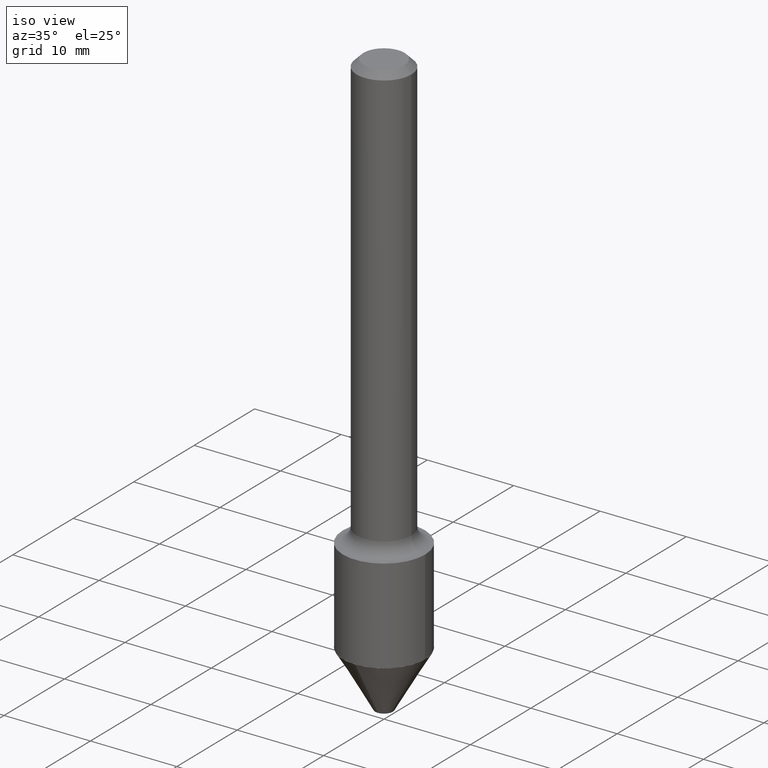
[diagram: clean part render]
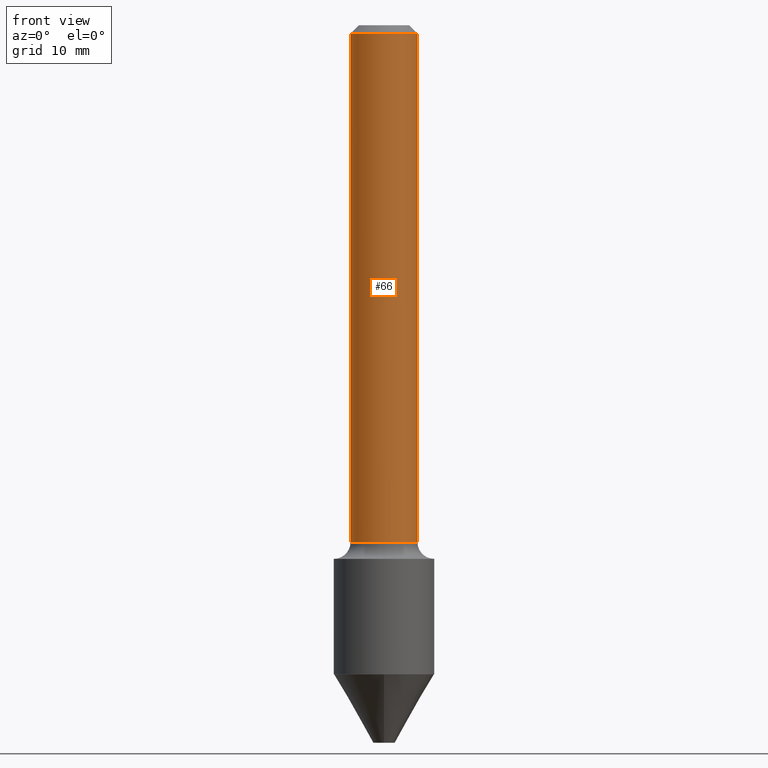
[diagram: tour spotlight — one face highlighted and labeled with its STEP entity id]
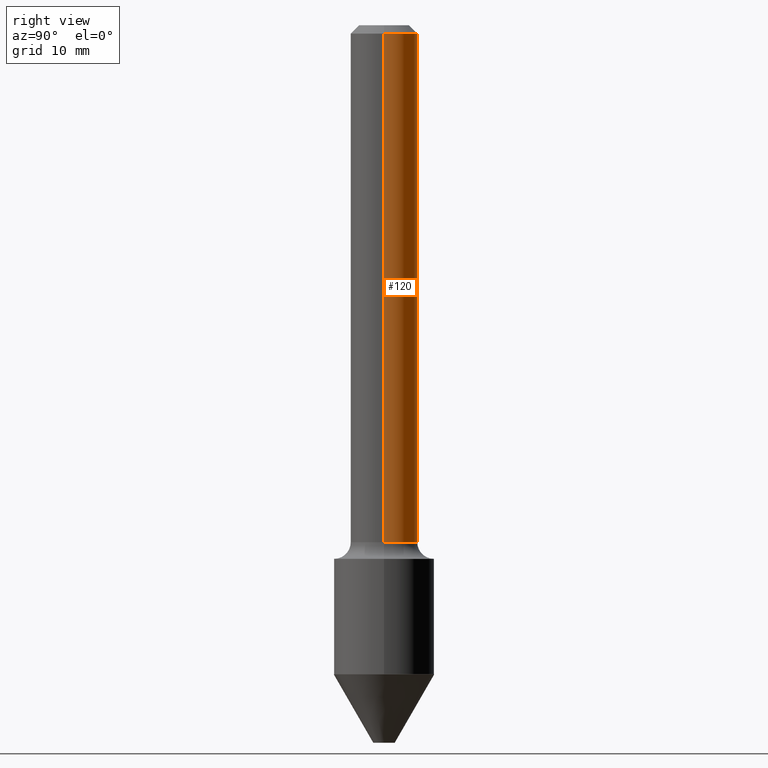
[diagram: tour spotlight — one face highlighted and labeled with its STEP entity id]
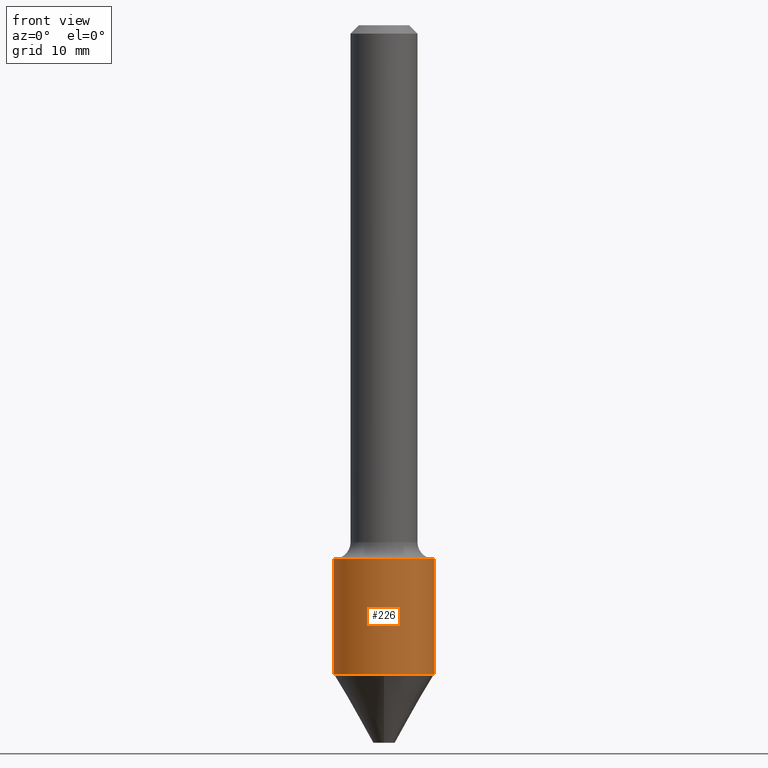
[diagram: tour spotlight — one face highlighted and labeled with its STEP entity id]
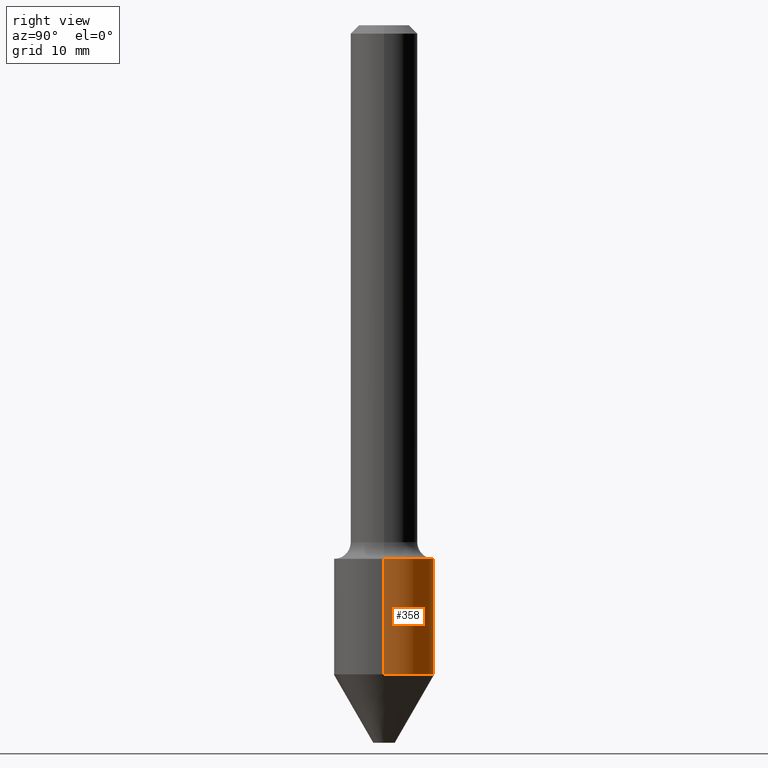
[diagram: tour spotlight — one face highlighted and labeled with its STEP entity id]
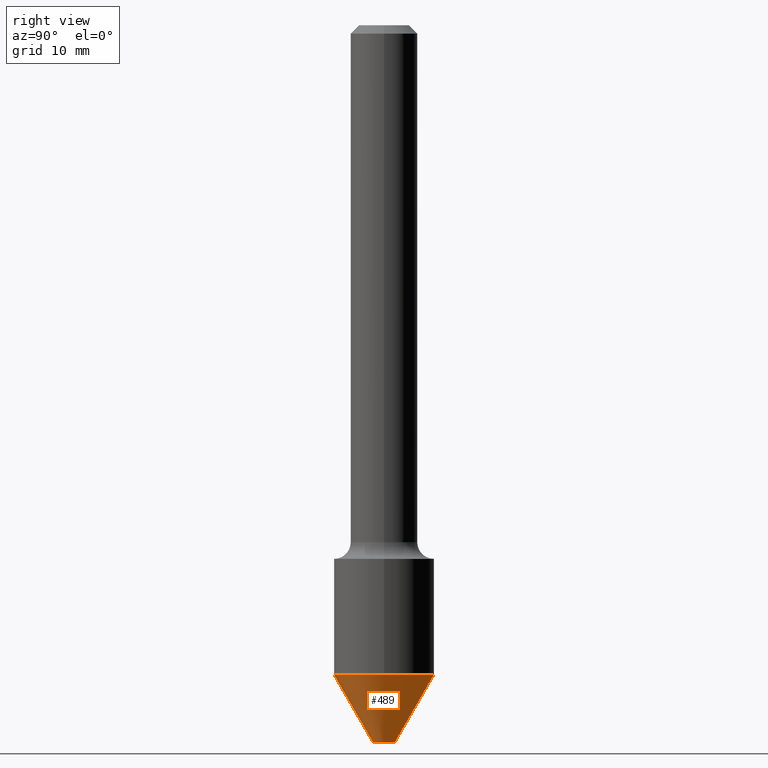
[diagram: tour spotlight — one face highlighted and labeled with its STEP entity id]
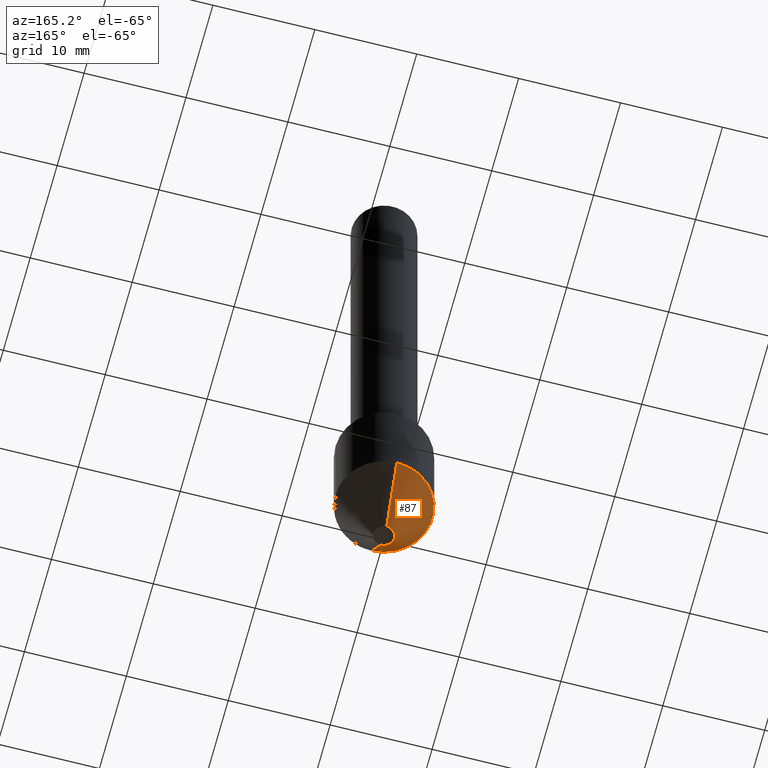
[diagram: tour spotlight — one face highlighted and labeled with its STEP entity id]
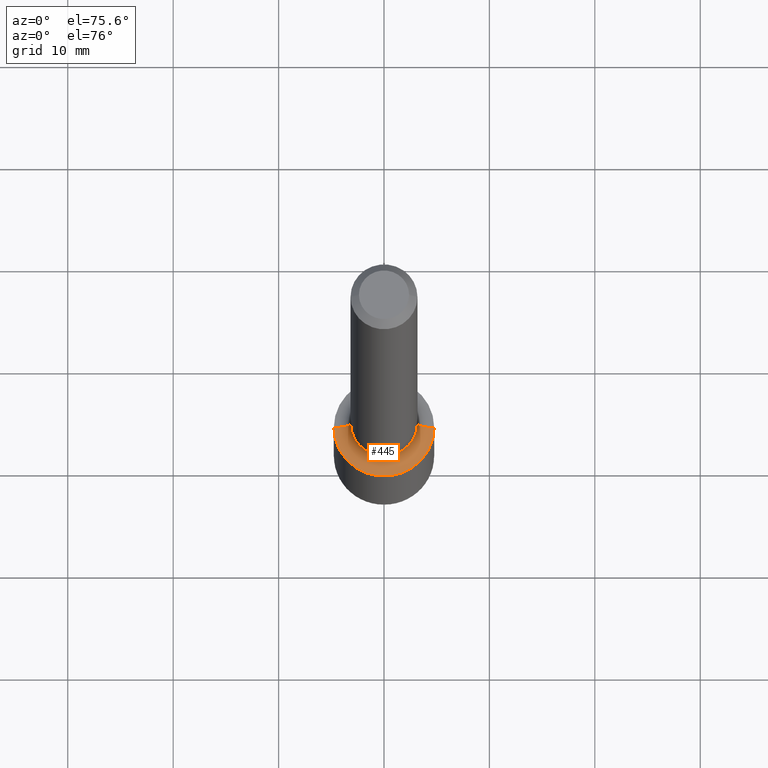
[diagram: tour spotlight — one face highlighted and labeled with its STEP entity id]
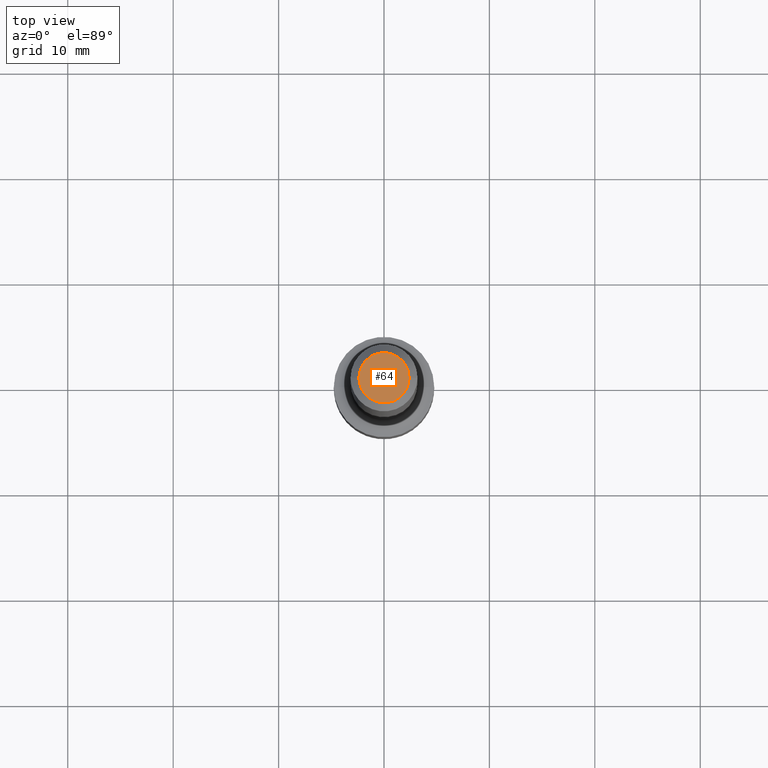
[diagram: tour spotlight — one face highlighted and labeled with its STEP entity id]
A machine part: a face-by-face anatomy tour. The part has 18 B-rep faces; the first image is the clean iso view, then the 8 largest visible faces are spotlighted one at a time (largest first), each with its STEP entity span.

Face 1 — front view, entity #66. In plain terms, the highlighted cylindrical surface (edge-blend (fillet) strip) has radius 3.175 mm, axis along (-0, 0, 1).
Definition (entity closure, byte-faithful):
#13 = ORIENTED_EDGE ( 'NONE', *, *, #314, .F. ) ;
#25 = DIRECTION ( 'NONE',  ( -2.445468806185136597E-29, 3.491481338843145583E-15, 1.000000000000000000 ) ) ;
#33 = VERTEX_POINT ( 'NONE', #187 ) ;
#38 = CARTESIAN_POINT ( 'NONE',  ( -0.1250000000000001110, 8.881784197001260212E-16, -6.148668862818637832E-30 ) ) ;
#47 = DIRECTION ( 'NONE',  ( -2.445468806185136877E-29, 3.491481338843145188E-15, 1.000000000000000000 ) ) ;
#50 = CARTESIAN_POINT ( 'NONE',  ( -0.1250000000000002498, -5.739190491850385263E-15, -1.930500000000000549 ) ) ;
#66 = ADVANCED_FACE ( 'NONE', ( #385 ), #508, .T. ) ;
#75 = CIRCLE ( 'NONE', #430, 0.1250000000000000000 ) ;
#77 = DIRECTION ( 'NONE',  ( 1.000000000000000000, -6.982962677686264344E-15, 0.000000000000000000 ) ) ;
#114 = CARTESIAN_POINT ( 'NONE',  ( 4.720977530340407980E-29, -6.740304724636694281E-15, -1.930500000000000549 ) ) ;
#127 = DIRECTION ( 'NONE',  ( -2.445468806185136877E-29, 3.491481338843145188E-15, 1.000000000000000000 ) ) ;
#146 = DIRECTION ( 'NONE',  ( -2.445468806185136597E-29, 3.491481338843145583E-15, 1.000000000000000000 ) ) ;
#164 = EDGE_CURVE ( 'NONE', #514, #415, #317, .T. ) ;
#174 = EDGE_LOOP ( 'NONE', ( #13, #370, #488, #405 ) ) ;
#187 = CARTESIAN_POINT ( 'NONE',  ( 0.1250000000000000000, -9.664964674933483956E-16, -0.03120000000000020673 ) ) ;
#202 = VECTOR ( 'NONE', #127, 39.37007874015748143 ) ;
#217 = LINE ( 'NONE', #375, #202 ) ;
#230 = DIRECTION ( 'NONE',  ( -2.445468806185136597E-29, 3.491481338843145583E-15, 1.000000000000000000 ) ) ;
#253 = VECTOR ( 'NONE', #47, 39.37007874015748143 ) ;
#260 = CARTESIAN_POINT ( 'NONE',  ( 0.000000000000000000, 0.000000000000000000, 0.000000000000000000 ) ) ;
#296 = VERTEX_POINT ( 'NONE', #438 ) ;
#314 = EDGE_CURVE ( 'NONE', #514, #296, #399, .T. ) ;
#317 = CIRCLE ( 'NONE', #461, 0.1250000000000002498 ) ;
#325 = CARTESIAN_POINT ( 'NONE',  ( 0.1250000000000002498, -7.613175059347479197E-15, -1.930500000000000549 ) ) ;
#339 = CARTESIAN_POINT ( 'NONE',  ( 7.629862675297676574E-31, -1.089342177719068640E-16, -0.03120000000000020673 ) ) ;
#370 = ORIENTED_EDGE ( 'NONE', *, *, #164, .T. ) ;
#375 = CARTESIAN_POINT ( 'NONE',  ( 0.1250000000000001110, -8.728703347107842263E-16, 6.095220969744926047E-30 ) ) ;
#385 = FACE_OUTER_BOUND ( 'NONE', #174, .T. ) ;
#391 = EDGE_CURVE ( 'NONE', #296, #33, #75, .T. ) ;
#395 = AXIS2_PLACEMENT_3D ( 'NONE', #260, #25, #426 ) ;
#399 = LINE ( 'NONE', #38, #253 ) ;
#405 = ORIENTED_EDGE ( 'NONE', *, *, #391, .F. ) ;
#415 = VERTEX_POINT ( 'NONE', #325 ) ;
#426 = DIRECTION ( 'NONE',  ( 1.000000000000000000, -6.982962677686267499E-15, 4.876176775795936353E-29 ) ) ;
#430 = AXIS2_PLACEMENT_3D ( 'NONE', #339, #146, #457 ) ;
#438 = CARTESIAN_POINT ( 'NONE',  ( -0.1250000000000000000, 7.639361169388764871E-16, -0.03120000000000020673 ) ) ;
#457 = DIRECTION ( 'NONE',  ( 1.000000000000000000, -6.982962677686266711E-15, 0.000000000000000000 ) ) ;
#461 = AXIS2_PLACEMENT_3D ( 'NONE', #114, #230, #77 ) ;
#481 = EDGE_CURVE ( 'NONE', #415, #33, #217, .T. ) ;
#488 = ORIENTED_EDGE ( 'NONE', *, *, #481, .T. ) ;
#508 = CYLINDRICAL_SURFACE ( 'NONE', #395, 0.1250000000000001110 ) ;
#514 = VERTEX_POINT ( 'NONE', #50 ) ;

Face 2 — right view, entity #120. In plain terms, the highlighted cylindrical surface (edge-blend (fillet) strip) has radius 3.175 mm, axis along (-0, 0, 1).
Definition (entity closure, byte-faithful):
#23 = CARTESIAN_POINT ( 'NONE',  ( 7.629862675297676574E-31, -1.089342177719068640E-16, -0.03120000000000020673 ) ) ;
#33 = VERTEX_POINT ( 'NONE', #187 ) ;
#38 = CARTESIAN_POINT ( 'NONE',  ( -0.1250000000000001110, 8.881784197001260212E-16, -6.148668862818637832E-30 ) ) ;
#47 = DIRECTION ( 'NONE',  ( -2.445468806185136877E-29, 3.491481338843145188E-15, 1.000000000000000000 ) ) ;
#50 = CARTESIAN_POINT ( 'NONE',  ( -0.1250000000000002498, -5.739190491850385263E-15, -1.930500000000000549 ) ) ;
#97 = ORIENTED_EDGE ( 'NONE', *, *, #353, .F. ) ;
#105 = DIRECTION ( 'NONE',  ( 1.000000000000000000, -6.982962677686266711E-15, 0.000000000000000000 ) ) ;
#120 = ADVANCED_FACE ( 'NONE', ( #503 ), #341, .T. ) ;
#127 = DIRECTION ( 'NONE',  ( -2.445468806185136877E-29, 3.491481338843145188E-15, 1.000000000000000000 ) ) ;
#134 = ORIENTED_EDGE ( 'NONE', *, *, #208, .T. ) ;
#141 = EDGE_LOOP ( 'NONE', ( #134, #450, #97, #282 ) ) ;
#169 = CIRCLE ( 'NONE', #456, 0.1250000000000000000 ) ;
#187 = CARTESIAN_POINT ( 'NONE',  ( 0.1250000000000000000, -9.664964674933483956E-16, -0.03120000000000020673 ) ) ;
#193 = AXIS2_PLACEMENT_3D ( 'NONE', #262, #196, #350 ) ;
#196 = DIRECTION ( 'NONE',  ( -2.445468806185136597E-29, 3.491481338843145583E-15, 1.000000000000000000 ) ) ;
#202 = VECTOR ( 'NONE', #127, 39.37007874015748143 ) ;
#208 = EDGE_CURVE ( 'NONE', #415, #514, #270, .T. ) ;
#217 = LINE ( 'NONE', #375, #202 ) ;
#253 = VECTOR ( 'NONE', #47, 39.37007874015748143 ) ;
#262 = CARTESIAN_POINT ( 'NONE',  ( 4.720977530340407980E-29, -6.740304724636694281E-15, -1.930500000000000549 ) ) ;
#270 = CIRCLE ( 'NONE', #193, 0.1250000000000002498 ) ;
#271 = CARTESIAN_POINT ( 'NONE',  ( 0.000000000000000000, 0.000000000000000000, 0.000000000000000000 ) ) ;
#276 = AXIS2_PLACEMENT_3D ( 'NONE', #271, #467, #302 ) ;
#282 = ORIENTED_EDGE ( 'NONE', *, *, #481, .F. ) ;
#296 = VERTEX_POINT ( 'NONE', #438 ) ;
#302 = DIRECTION ( 'NONE',  ( 1.000000000000000000, -6.982962677686267499E-15, 4.876176775795936353E-29 ) ) ;
#314 = EDGE_CURVE ( 'NONE', #514, #296, #399, .T. ) ;
#325 = CARTESIAN_POINT ( 'NONE',  ( 0.1250000000000002498, -7.613175059347479197E-15, -1.930500000000000549 ) ) ;
#341 = CYLINDRICAL_SURFACE ( 'NONE', #276, 0.1250000000000001110 ) ;
#350 = DIRECTION ( 'NONE',  ( 1.000000000000000000, -6.982962677686264344E-15, 0.000000000000000000 ) ) ;
#353 = EDGE_CURVE ( 'NONE', #33, #296, #169, .T. ) ;
#375 = CARTESIAN_POINT ( 'NONE',  ( 0.1250000000000001110, -8.728703347107842263E-16, 6.095220969744926047E-30 ) ) ;
#399 = LINE ( 'NONE', #38, #253 ) ;
#415 = VERTEX_POINT ( 'NONE', #325 ) ;
#438 = CARTESIAN_POINT ( 'NONE',  ( -0.1250000000000000000, 7.639361169388764871E-16, -0.03120000000000020673 ) ) ;
#450 = ORIENTED_EDGE ( 'NONE', *, *, #314, .T. ) ;
#456 = AXIS2_PLACEMENT_3D ( 'NONE', #23, #497, #105 ) ;
#467 = DIRECTION ( 'NONE',  ( -2.445468806185136597E-29, 3.491481338843145583E-15, 1.000000000000000000 ) ) ;
#481 = EDGE_CURVE ( 'NONE', #415, #33, #217, .T. ) ;
#497 = DIRECTION ( 'NONE',  ( -2.445468806185136597E-29, 3.491481338843145583E-15, 1.000000000000000000 ) ) ;
#503 = FACE_OUTER_BOUND ( 'NONE', #141, .T. ) ;
#514 = VERTEX_POINT ( 'NONE', #50 ) ;

Face 3 — front view, entity #226. In plain terms, the highlighted cylindrical surface (partial cylindrical patch) has radius 4.7625 mm, axis along (-0, 0, 1).
Definition (entity closure, byte-faithful):
#2 = ORIENTED_EDGE ( 'NONE', *, *, #460, .T. ) ;
#21 = EDGE_CURVE ( 'NONE', #61, #251, #110, .T. ) ;
#32 = CYLINDRICAL_SURFACE ( 'NONE', #116, 0.1874999999999999722 ) ;
#55 = ORIENTED_EDGE ( 'NONE', *, *, #184, .T. ) ;
#56 = CARTESIAN_POINT ( 'NONE',  ( 0.1874999999999999722, -1.309305502066174811E-15, 9.142831454617378210E-30 ) ) ;
#61 = VERTEX_POINT ( 'NONE', #446 ) ;
#80 = ORIENTED_EDGE ( 'NONE', *, *, #21, .F. ) ;
#96 = CARTESIAN_POINT ( 'NONE',  ( 4.873819330726977897E-29, -6.958522308314390115E-15, -1.993000000000000327 ) ) ;
#99 = DIRECTION ( 'NONE',  ( -2.445468806185136597E-29, 3.491481338843145583E-15, 1.000000000000000000 ) ) ;
#110 = CIRCLE ( 'NONE', #307, 0.1874999999999999722 ) ;
#116 = AXIS2_PLACEMENT_3D ( 'NONE', #119, #469, #313 ) ;
#119 = CARTESIAN_POINT ( 'NONE',  ( 0.000000000000000000, 0.000000000000000000, 0.000000000000000000 ) ) ;
#137 = DIRECTION ( 'NONE',  ( 1.000000000000000000, -6.982962677686263555E-15, 0.000000000000000000 ) ) ;
#162 = CARTESIAN_POINT ( 'NONE',  ( 5.926648689226014314E-29, -8.461683603559019351E-15, -2.423522505883615175 ) ) ;
#182 = ORIENTED_EDGE ( 'NONE', *, *, #266, .F. ) ;
#184 = EDGE_CURVE ( 'NONE', #292, #321, #304, .T. ) ;
#206 = CARTESIAN_POINT ( 'NONE',  ( -0.1874999999999999722, -6.377835326386517279E-15, -2.423522505883615175 ) ) ;
#226 = ADVANCED_FACE ( 'NONE', ( #393 ), #32, .T. ) ;
#239 = EDGE_LOOP ( 'NONE', ( #182, #55, #2, #80 ) ) ;
#251 = VERTEX_POINT ( 'NONE', #275 ) ;
#263 = VECTOR ( 'NONE', #441, 39.37007874015748143 ) ;
#266 = EDGE_CURVE ( 'NONE', #292, #61, #361, .T. ) ;
#275 = CARTESIAN_POINT ( 'NONE',  ( 0.1874999999999999722, -8.267827810380565912E-15, -1.993000000000000327 ) ) ;
#287 = VECTOR ( 'NONE', #368, 39.37007874015748143 ) ;
#292 = VERTEX_POINT ( 'NONE', #206 ) ;
#304 = CIRCLE ( 'NONE', #329, 0.1874999999999999722 ) ;
#307 = AXIS2_PLACEMENT_3D ( 'NONE', #96, #99, #418 ) ;
#313 = DIRECTION ( 'NONE',  ( 1.000000000000000000, -6.982962677686266711E-15, 4.876176775795935793E-29 ) ) ;
#321 = VERTEX_POINT ( 'NONE', #356 ) ;
#329 = AXIS2_PLACEMENT_3D ( 'NONE', #162, #331, #137 ) ;
#331 = DIRECTION ( 'NONE',  ( -2.445468806185136597E-29, 3.491481338843145583E-15, 1.000000000000000000 ) ) ;
#356 = CARTESIAN_POINT ( 'NONE',  ( 0.1874999999999999722, -9.770989105625194359E-15, -2.423522505883615175 ) ) ;
#361 = LINE ( 'NONE', #472, #263 ) ;
#368 = DIRECTION ( 'NONE',  ( -2.445468806185136877E-29, 3.491481338843145188E-15, 1.000000000000000000 ) ) ;
#393 = FACE_OUTER_BOUND ( 'NONE', #239, .T. ) ;
#414 = LINE ( 'NONE', #56, #287 ) ;
#418 = DIRECTION ( 'NONE',  ( 1.000000000000000000, -6.982962677686269077E-15, 0.000000000000000000 ) ) ;
#441 = DIRECTION ( 'NONE',  ( -2.445468806185136877E-29, 3.491481338843145188E-15, 1.000000000000000000 ) ) ;
#446 = CARTESIAN_POINT ( 'NONE',  ( -0.1874999999999999722, -5.626254678764202267E-15, -1.993000000000000327 ) ) ;
#460 = EDGE_CURVE ( 'NONE', #321, #251, #414, .T. ) ;
#469 = DIRECTION ( 'NONE',  ( -2.445468806185136597E-29, 3.491481338843145583E-15, 1.000000000000000000 ) ) ;
#472 = CARTESIAN_POINT ( 'NONE',  ( -0.1874999999999999722, 1.332267629550187651E-15, -9.223003294227946589E-30 ) ) ;

Face 4 — right view, entity #358. In plain terms, the highlighted cylindrical surface (partial cylindrical patch) has radius 4.7625 mm, axis along (-0, 0, 1).
Definition (entity closure, byte-faithful):
#5 = EDGE_CURVE ( 'NONE', #251, #61, #124, .T. ) ;
#15 = FACE_OUTER_BOUND ( 'NONE', #378, .T. ) ;
#16 = ORIENTED_EDGE ( 'NONE', *, *, #5, .F. ) ;
#56 = CARTESIAN_POINT ( 'NONE',  ( 0.1874999999999999722, -1.309305502066174811E-15, 9.142831454617378210E-30 ) ) ;
#61 = VERTEX_POINT ( 'NONE', #446 ) ;
#62 = CARTESIAN_POINT ( 'NONE',  ( 0.000000000000000000, 0.000000000000000000, 0.000000000000000000 ) ) ;
#124 = CIRCLE ( 'NONE', #265, 0.1874999999999999722 ) ;
#125 = DIRECTION ( 'NONE',  ( 1.000000000000000000, -6.982962677686263555E-15, 0.000000000000000000 ) ) ;
#145 = CIRCLE ( 'NONE', #518, 0.1874999999999999722 ) ;
#170 = CARTESIAN_POINT ( 'NONE',  ( 5.926648689226014314E-29, -8.461683603559019351E-15, -2.423522505883615175 ) ) ;
#206 = CARTESIAN_POINT ( 'NONE',  ( -0.1874999999999999722, -6.377835326386517279E-15, -2.423522505883615175 ) ) ;
#222 = DIRECTION ( 'NONE',  ( -2.445468806185136597E-29, 3.491481338843145583E-15, 1.000000000000000000 ) ) ;
#251 = VERTEX_POINT ( 'NONE', #275 ) ;
#259 = DIRECTION ( 'NONE',  ( 1.000000000000000000, -6.982962677686269077E-15, 0.000000000000000000 ) ) ;
#263 = VECTOR ( 'NONE', #441, 39.37007874015748143 ) ;
#265 = AXIS2_PLACEMENT_3D ( 'NONE', #290, #323, #259 ) ;
#266 = EDGE_CURVE ( 'NONE', #292, #61, #361, .T. ) ;
#275 = CARTESIAN_POINT ( 'NONE',  ( 0.1874999999999999722, -8.267827810380565912E-15, -1.993000000000000327 ) ) ;
#287 = VECTOR ( 'NONE', #368, 39.37007874015748143 ) ;
#290 = CARTESIAN_POINT ( 'NONE',  ( 4.873819330726977897E-29, -6.958522308314390115E-15, -1.993000000000000327 ) ) ;
#292 = VERTEX_POINT ( 'NONE', #206 ) ;
#316 = EDGE_CURVE ( 'NONE', #321, #292, #145, .T. ) ;
#321 = VERTEX_POINT ( 'NONE', #356 ) ;
#323 = DIRECTION ( 'NONE',  ( -2.445468806185136597E-29, 3.491481338843145583E-15, 1.000000000000000000 ) ) ;
#326 = ORIENTED_EDGE ( 'NONE', *, *, #316, .T. ) ;
#335 = ORIENTED_EDGE ( 'NONE', *, *, #266, .T. ) ;
#356 = CARTESIAN_POINT ( 'NONE',  ( 0.1874999999999999722, -9.770989105625194359E-15, -2.423522505883615175 ) ) ;
#358 = ADVANCED_FACE ( 'NONE', ( #15 ), #422, .T. ) ;
#361 = LINE ( 'NONE', #472, #263 ) ;
#363 = AXIS2_PLACEMENT_3D ( 'NONE', #62, #222, #379 ) ;
#366 = ORIENTED_EDGE ( 'NONE', *, *, #460, .F. ) ;
#368 = DIRECTION ( 'NONE',  ( -2.445468806185136877E-29, 3.491481338843145188E-15, 1.000000000000000000 ) ) ;
#378 = EDGE_LOOP ( 'NONE', ( #326, #335, #16, #366 ) ) ;
#379 = DIRECTION ( 'NONE',  ( 1.000000000000000000, -6.982962677686266711E-15, 4.876176775795935793E-29 ) ) ;
#414 = LINE ( 'NONE', #56, #287 ) ;
#422 = CYLINDRICAL_SURFACE ( 'NONE', #363, 0.1874999999999999722 ) ;
#441 = DIRECTION ( 'NONE',  ( -2.445468806185136877E-29, 3.491481338843145188E-15, 1.000000000000000000 ) ) ;
#446 = CARTESIAN_POINT ( 'NONE',  ( -0.1874999999999999722, -5.626254678764202267E-15, -1.993000000000000327 ) ) ;
#460 = EDGE_CURVE ( 'NONE', #321, #251, #414, .T. ) ;
#472 = CARTESIAN_POINT ( 'NONE',  ( -0.1874999999999999722, 1.332267629550187651E-15, -9.223003294227946589E-30 ) ) ;
#477 = DIRECTION ( 'NONE',  ( -2.445468806185136597E-29, 3.491481338843145583E-15, 1.000000000000000000 ) ) ;
#518 = AXIS2_PLACEMENT_3D ( 'NONE', #170, #477, #125 ) ;

Face 5 — right view, entity #489. In plain terms, the highlighted conical surface has half-angle 30 deg.
Definition (entity closure, byte-faithful):
#8 = CIRCLE ( 'NONE', #180, 0.1874999999999999445 ) ;
#30 = AXIS2_PLACEMENT_3D ( 'NONE', #440, #280, #123 ) ;
#41 = DIRECTION ( 'NONE',  ( 3.552713678800714711E-15, 0.5000000000000361933, 0.8660254037844177244 ) ) ;
#59 = CONICAL_SURFACE ( 'NONE', #30, 0.1874999999999999445, 0.5235987755983373404 ) ;
#79 = LINE ( 'NONE', #357, #486 ) ;
#89 = VERTEX_POINT ( 'NONE', #115 ) ;
#115 = CARTESIAN_POINT ( 'NONE',  ( 8.082423619271767035E-16, 0.03999999999999077210, -2.680000000000001048 ) ) ;
#123 = DIRECTION ( 'NONE',  ( -6.982962677686266711E-15, -1.000000000000000000, 2.913971193241881555E-15 ) ) ;
#148 = CARTESIAN_POINT ( 'NONE',  ( 5.866024607763117522E-29, -8.555494270579057560E-15, -2.424522505883614620 ) ) ;
#159 = EDGE_CURVE ( 'NONE', #495, #454, #8, .T. ) ;
#177 = EDGE_CURVE ( 'NONE', #205, #495, #500, .T. ) ;
#180 = AXIS2_PLACEMENT_3D ( 'NONE', #148, #465, #194 ) ;
#194 = DIRECTION ( 'NONE',  ( -6.982962677686266711E-15, -1.000000000000000000, 2.913971193241881555E-15 ) ) ;
#199 = ORIENTED_EDGE ( 'NONE', *, *, #177, .F. ) ;
#205 = VERTEX_POINT ( 'NONE', #403 ) ;
#211 = CARTESIAN_POINT ( 'NONE',  ( 1.332267629550245633E-15, 0.1874999999999913403, -2.424522505883615064 ) ) ;
#221 = ORIENTED_EDGE ( 'NONE', *, *, #159, .F. ) ;
#236 = VECTOR ( 'NONE', #268, 39.37007874015748143 ) ;
#268 = DIRECTION ( 'NONE',  ( -3.491481338843388157E-15, -0.5000000000000304201, 0.8660254037844210551 ) ) ;
#280 = DIRECTION ( 'NONE',  ( -2.589397440487598064E-29, 3.285367342612894340E-15, 1.000000000000000000 ) ) ;
#284 = FACE_OUTER_BOUND ( 'NONE', #451, .T. ) ;
#318 = CARTESIAN_POINT ( 'NONE',  ( 6.527557377130273734E-29, -9.394831686521610282E-15, -2.680000000000001048 ) ) ;
#330 = AXIS2_PLACEMENT_3D ( 'NONE', #318, #516, #476 ) ;
#334 = CARTESIAN_POINT ( 'NONE',  ( -1.309305502066116041E-15, -0.1875000000000085487, -2.424522505883614176 ) ) ;
#357 = CARTESIAN_POINT ( 'NONE',  ( 1.332267629550246027E-15, 0.1874999999999913680, -2.424522505883615064 ) ) ;
#362 = ORIENTED_EDGE ( 'NONE', *, *, #506, .T. ) ;
#364 = CIRCLE ( 'NONE', #330, 0.04000000000000016043 ) ;
#376 = ORIENTED_EDGE ( 'NONE', *, *, #419, .T. ) ;
#403 = CARTESIAN_POINT ( 'NONE',  ( -2.793185071073865340E-16, -0.04000000000000955569, -2.680000000000001048 ) ) ;
#419 = EDGE_CURVE ( 'NONE', #89, #454, #79, .T. ) ;
#440 = CARTESIAN_POINT ( 'NONE',  ( 5.866024607763117522E-29, -8.555494270579057560E-15, -2.424522505883614620 ) ) ;
#451 = EDGE_LOOP ( 'NONE', ( #362, #376, #221, #199 ) ) ;
#454 = VERTEX_POINT ( 'NONE', #211 ) ;
#465 = DIRECTION ( 'NONE',  ( -2.589397440487598064E-29, 3.285367342612894340E-15, 1.000000000000000000 ) ) ;
#476 = DIRECTION ( 'NONE',  ( -6.982962677686267499E-15, -1.000000000000000000, 0.000000000000000000 ) ) ;
#483 = CARTESIAN_POINT ( 'NONE',  ( -1.309305502066115844E-15, -0.1875000000000085210, -2.424522505883614176 ) ) ;
#486 = VECTOR ( 'NONE', #41, 39.37007874015748143 ) ;
#489 = ADVANCED_FACE ( 'NONE', ( #284 ), #59, .T. ) ;
#495 = VERTEX_POINT ( 'NONE', #334 ) ;
#500 = LINE ( 'NONE', #483, #236 ) ;
#506 = EDGE_CURVE ( 'NONE', #205, #89, #364, .T. ) ;
#516 = DIRECTION ( 'NONE',  ( -2.589397440487598064E-29, 3.285367342612894340E-15, 1.000000000000000000 ) ) ;

Face 6 — auxiliary view, entity #87. In plain terms, the highlighted conical surface has half-angle 30 deg.
Definition (entity closure, byte-faithful):
#20 = AXIS2_PLACEMENT_3D ( 'NONE', #113, #279, #48 ) ;
#31 = FACE_OUTER_BOUND ( 'NONE', #354, .T. ) ;
#41 = DIRECTION ( 'NONE',  ( 3.552713678800714711E-15, 0.5000000000000361933, 0.8660254037844177244 ) ) ;
#48 = DIRECTION ( 'NONE',  ( -6.982962677686267499E-15, -1.000000000000000000, 0.000000000000000000 ) ) ;
#57 = ORIENTED_EDGE ( 'NONE', *, *, #419, .F. ) ;
#79 = LINE ( 'NONE', #357, #486 ) ;
#81 = AXIS2_PLACEMENT_3D ( 'NONE', #269, #343, #309 ) ;
#87 = ADVANCED_FACE ( 'NONE', ( #31 ), #434, .T. ) ;
#89 = VERTEX_POINT ( 'NONE', #115 ) ;
#107 = AXIS2_PLACEMENT_3D ( 'NONE', #463, #347, #190 ) ;
#113 = CARTESIAN_POINT ( 'NONE',  ( 6.527557377130273734E-29, -9.394831686521610282E-15, -2.680000000000001048 ) ) ;
#115 = CARTESIAN_POINT ( 'NONE',  ( 8.082423619271767035E-16, 0.03999999999999077210, -2.680000000000001048 ) ) ;
#118 = EDGE_CURVE ( 'NONE', #454, #495, #216, .T. ) ;
#129 = ORIENTED_EDGE ( 'NONE', *, *, #177, .T. ) ;
#160 = ORIENTED_EDGE ( 'NONE', *, *, #118, .F. ) ;
#177 = EDGE_CURVE ( 'NONE', #205, #495, #500, .T. ) ;
#190 = DIRECTION ( 'NONE',  ( -6.982962677686266711E-15, -1.000000000000000000, 2.913971193241881555E-15 ) ) ;
#205 = VERTEX_POINT ( 'NONE', #403 ) ;
#211 = CARTESIAN_POINT ( 'NONE',  ( 1.332267629550245633E-15, 0.1874999999999913403, -2.424522505883615064 ) ) ;
#216 = CIRCLE ( 'NONE', #81, 0.1874999999999999445 ) ;
#236 = VECTOR ( 'NONE', #268, 39.37007874015748143 ) ;
#268 = DIRECTION ( 'NONE',  ( -3.491481338843388157E-15, -0.5000000000000304201, 0.8660254037844210551 ) ) ;
#269 = CARTESIAN_POINT ( 'NONE',  ( 5.866024607763117522E-29, -8.555494270579057560E-15, -2.424522505883614620 ) ) ;
#279 = DIRECTION ( 'NONE',  ( -2.589397440487598064E-29, 3.285367342612894340E-15, 1.000000000000000000 ) ) ;
#294 = ORIENTED_EDGE ( 'NONE', *, *, #413, .T. ) ;
#309 = DIRECTION ( 'NONE',  ( -6.982962677686266711E-15, -1.000000000000000000, 2.913971193241881555E-15 ) ) ;
#334 = CARTESIAN_POINT ( 'NONE',  ( -1.309305502066116041E-15, -0.1875000000000085487, -2.424522505883614176 ) ) ;
#343 = DIRECTION ( 'NONE',  ( -2.589397440487598064E-29, 3.285367342612894340E-15, 1.000000000000000000 ) ) ;
#347 = DIRECTION ( 'NONE',  ( -2.589397440487598064E-29, 3.285367342612894340E-15, 1.000000000000000000 ) ) ;
#354 = EDGE_LOOP ( 'NONE', ( #57, #294, #129, #160 ) ) ;
#357 = CARTESIAN_POINT ( 'NONE',  ( 1.332267629550246027E-15, 0.1874999999999913680, -2.424522505883615064 ) ) ;
#403 = CARTESIAN_POINT ( 'NONE',  ( -2.793185071073865340E-16, -0.04000000000000955569, -2.680000000000001048 ) ) ;
#413 = EDGE_CURVE ( 'NONE', #89, #205, #498, .T. ) ;
#419 = EDGE_CURVE ( 'NONE', #89, #454, #79, .T. ) ;
#434 = CONICAL_SURFACE ( 'NONE', #107, 0.1874999999999999445, 0.5235987755983373404 ) ;
#454 = VERTEX_POINT ( 'NONE', #211 ) ;
#463 = CARTESIAN_POINT ( 'NONE',  ( 5.866024607763117522E-29, -8.555494270579057560E-15, -2.424522505883614620 ) ) ;
#483 = CARTESIAN_POINT ( 'NONE',  ( -1.309305502066115844E-15, -0.1875000000000085210, -2.424522505883614176 ) ) ;
#486 = VECTOR ( 'NONE', #41, 39.37007874015748143 ) ;
#495 = VERTEX_POINT ( 'NONE', #334 ) ;
#498 = CIRCLE ( 'NONE', #20, 0.04000000000000016043 ) ;
#500 = LINE ( 'NONE', #483, #236 ) ;

Face 7 — auxiliary view, entity #445. In plain terms, the highlighted toroidal blend (fillet) surface has major radius 4.7625 mm and minor (blend) radius 1.5875 mm.
Definition (entity closure, byte-faithful):
#21 = EDGE_CURVE ( 'NONE', #61, #251, #110, .T. ) ;
#42 = EDGE_CURVE ( 'NONE', #415, #251, #504, .T. ) ;
#50 = CARTESIAN_POINT ( 'NONE',  ( -0.1250000000000002498, -5.739190491850385263E-15, -1.930500000000000549 ) ) ;
#61 = VERTEX_POINT ( 'NONE', #446 ) ;
#77 = DIRECTION ( 'NONE',  ( 1.000000000000000000, -6.982962677686264344E-15, 0.000000000000000000 ) ) ;
#93 = TOROIDAL_SURFACE ( 'NONE', #382, 0.1874999999999999722, 0.06249999999999970857 ) ;
#94 = ORIENTED_EDGE ( 'NONE', *, *, #342, .T. ) ;
#96 = CARTESIAN_POINT ( 'NONE',  ( 4.873819330726977897E-29, -6.958522308314390115E-15, -1.993000000000000327 ) ) ;
#99 = DIRECTION ( 'NONE',  ( -2.445468806185136597E-29, 3.491481338843145583E-15, 1.000000000000000000 ) ) ;
#100 = ORIENTED_EDGE ( 'NONE', *, *, #42, .F. ) ;
#102 = FACE_OUTER_BOUND ( 'NONE', #139, .T. ) ;
#110 = CIRCLE ( 'NONE', #307, 0.1874999999999999722 ) ;
#114 = CARTESIAN_POINT ( 'NONE',  ( 4.720977530340407980E-29, -6.740304724636694281E-15, -1.930500000000000549 ) ) ;
#139 = EDGE_LOOP ( 'NONE', ( #320, #94, #417, #100 ) ) ;
#164 = EDGE_CURVE ( 'NONE', #514, #415, #317, .T. ) ;
#224 = DIRECTION ( 'NONE',  ( -6.982962677686266711E-15, -1.000000000000000000, 3.491481338843145583E-15 ) ) ;
#230 = DIRECTION ( 'NONE',  ( -2.445468806185136597E-29, 3.491481338843145583E-15, 1.000000000000000000 ) ) ;
#249 = DIRECTION ( 'NONE',  ( -2.445468806185136597E-29, 3.491481338843145583E-15, 1.000000000000000000 ) ) ;
#251 = VERTEX_POINT ( 'NONE', #275 ) ;
#275 = CARTESIAN_POINT ( 'NONE',  ( 0.1874999999999999722, -8.267827810380565912E-15, -1.993000000000000327 ) ) ;
#281 = DIRECTION ( 'NONE',  ( 7.105427357601001859E-15, 1.000000000000000000, -3.491481338843145583E-15 ) ) ;
#307 = AXIS2_PLACEMENT_3D ( 'NONE', #96, #99, #418 ) ;
#317 = CIRCLE ( 'NONE', #461, 0.1250000000000002498 ) ;
#320 = ORIENTED_EDGE ( 'NONE', *, *, #164, .F. ) ;
#325 = CARTESIAN_POINT ( 'NONE',  ( 0.1250000000000002498, -7.613175059347479197E-15, -1.930500000000000549 ) ) ;
#336 = DIRECTION ( 'NONE',  ( 1.000000000000000000, -6.982962677686267499E-15, 4.883557194083113462E-29 ) ) ;
#342 = EDGE_CURVE ( 'NONE', #514, #61, #443, .T. ) ;
#372 = CARTESIAN_POINT ( 'NONE',  ( 0.1874999999999999722, -8.049610226702869289E-15, -1.930500000000000549 ) ) ;
#382 = AXIS2_PLACEMENT_3D ( 'NONE', #447, #249, #336 ) ;
#383 = DIRECTION ( 'NONE',  ( -1.000000000000000000, 7.105427357600997914E-15, 0.000000000000000000 ) ) ;
#388 = AXIS2_PLACEMENT_3D ( 'NONE', #513, #281, #383 ) ;
#415 = VERTEX_POINT ( 'NONE', #325 ) ;
#417 = ORIENTED_EDGE ( 'NONE', *, *, #21, .T. ) ;
#418 = DIRECTION ( 'NONE',  ( 1.000000000000000000, -6.982962677686269077E-15, 0.000000000000000000 ) ) ;
#435 = AXIS2_PLACEMENT_3D ( 'NONE', #372, #224, #484 ) ;
#443 = CIRCLE ( 'NONE', #388, 0.06249999999999970857 ) ;
#445 = ADVANCED_FACE ( 'NONE', ( #102 ), #93, .F. ) ;
#446 = CARTESIAN_POINT ( 'NONE',  ( -0.1874999999999999722, -5.626254678764202267E-15, -1.993000000000000327 ) ) ;
#447 = CARTESIAN_POINT ( 'NONE',  ( 4.720977530340407980E-29, -6.740304724636694281E-15, -1.930500000000000549 ) ) ;
#461 = AXIS2_PLACEMENT_3D ( 'NONE', #114, #230, #77 ) ;
#484 = DIRECTION ( 'NONE',  ( 1.000000000000000000, -6.982962677686264344E-15, 0.000000000000000000 ) ) ;
#504 = CIRCLE ( 'NONE', #435, 0.06249999999999970857 ) ;
#513 = CARTESIAN_POINT ( 'NONE',  ( -0.1874999999999999722, -5.408037095086507221E-15, -1.930500000000000549 ) ) ;
#514 = VERTEX_POINT ( 'NONE', #50 ) ;

Face 8 — top view, entity #64. In plain terms, the highlighted planar face has unit normal (0, -0, -1).
Definition (entity closure, byte-faithful):
#14 = ORIENTED_EDGE ( 'NONE', *, *, #491, .T. ) ;
#24 = CARTESIAN_POINT ( 'NONE',  ( 0.09379999999999999449, -8.050055898421590350E-16, -1.530808498933680906E-17 ) ) ;
#34 = CIRCLE ( 'NONE', #374, 0.09379999999999999449 ) ;
#64 = ADVANCED_FACE ( 'NONE', ( #412 ), #349, .F. ) ;
#71 = EDGE_CURVE ( 'NONE', #88, #482, #328, .T. ) ;
#88 = VERTEX_POINT ( 'NONE', #24 ) ;
#90 = DIRECTION ( 'NONE',  ( 1.000000000000000000, -6.982962677686266711E-15, 4.876421767504995250E-29 ) ) ;
#126 = EDGE_LOOP ( 'NONE', ( #14, #220 ) ) ;
#144 = AXIS2_PLACEMENT_3D ( 'NONE', #151, #197, #427 ) ;
#151 = CARTESIAN_POINT ( 'NONE',  ( 6.550018991669718048E-16, 0.09379999999999999449, -3.351549920781579832E-16 ) ) ;
#168 = DIRECTION ( 'NONE',  ( -2.445468806185136597E-29, 3.491481338843145583E-15, 1.000000000000000000 ) ) ;
#197 = DIRECTION ( 'NONE',  ( 2.438088387897960049E-29, -3.491481338843145188E-15, -1.000000000000000000 ) ) ;
#220 = ORIENTED_EDGE ( 'NONE', *, *, #71, .T. ) ;
#248 = CARTESIAN_POINT ( 'NONE',  ( 3.743544432386658428E-46, -5.344789307371216869E-32, -1.530808498934191509E-17 ) ) ;
#328 = CIRCLE ( 'NONE', #429, 0.09379999999999999449 ) ;
#340 = CARTESIAN_POINT ( 'NONE',  ( 3.743544432386658428E-46, -5.344789307371216869E-32, -1.530808498934191509E-17 ) ) ;
#349 = PLANE ( 'NONE',  #144 ) ;
#374 = AXIS2_PLACEMENT_3D ( 'NONE', #248, #168, #90 ) ;
#411 = CARTESIAN_POINT ( 'NONE',  ( -0.09379999999999999449, 7.094690080529240967E-16, -1.530808498934668523E-17 ) ) ;
#412 = FACE_OUTER_BOUND ( 'NONE', #126, .T. ) ;
#427 = DIRECTION ( 'NONE',  ( -1.000000000000000000, 6.982962677686265922E-15, -4.876176775795935793E-29 ) ) ;
#428 = DIRECTION ( 'NONE',  ( 1.000000000000000000, -6.982962677686266711E-15, 4.876421767504995250E-29 ) ) ;
#429 = AXIS2_PLACEMENT_3D ( 'NONE', #340, #459, #428 ) ;
#459 = DIRECTION ( 'NONE',  ( -2.445468806185136597E-29, 3.491481338843145583E-15, 1.000000000000000000 ) ) ;
#482 = VERTEX_POINT ( 'NONE', #411 ) ;
#491 = EDGE_CURVE ( 'NONE', #482, #88, #34, .T. ) ;